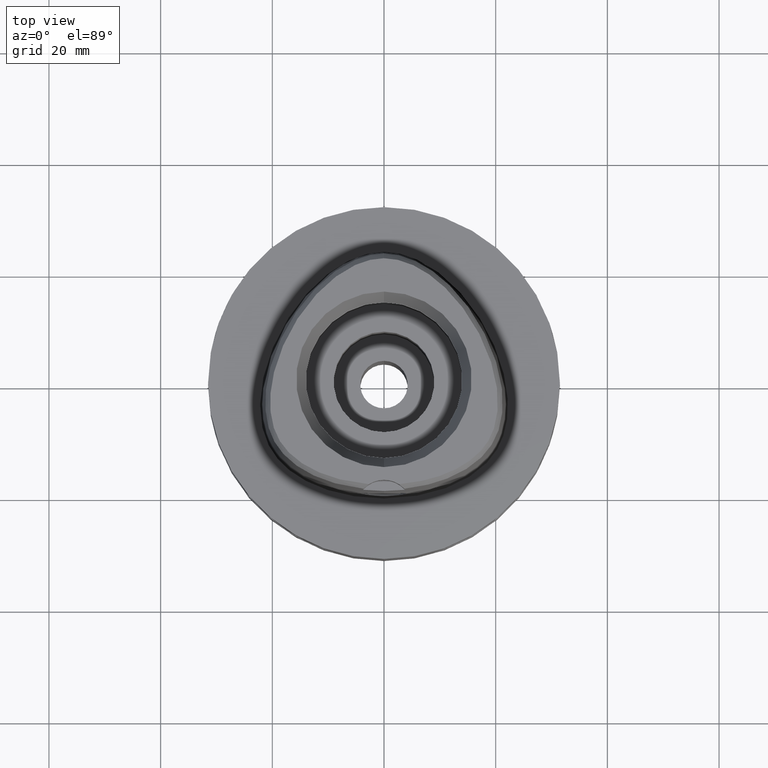
[diagram: clean part render]
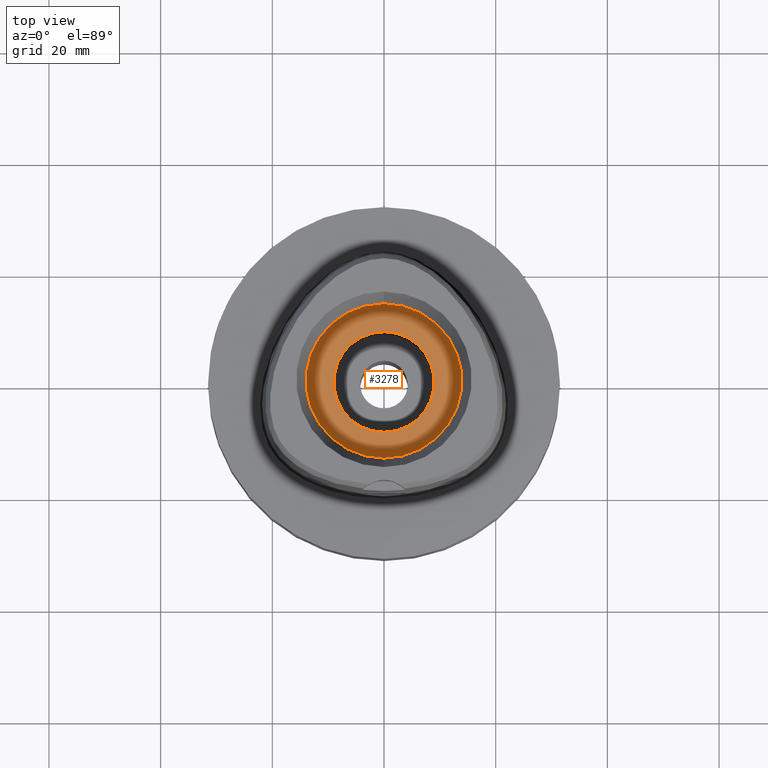
[diagram: same view with one face highlighted and labeled with its STEP entity id]
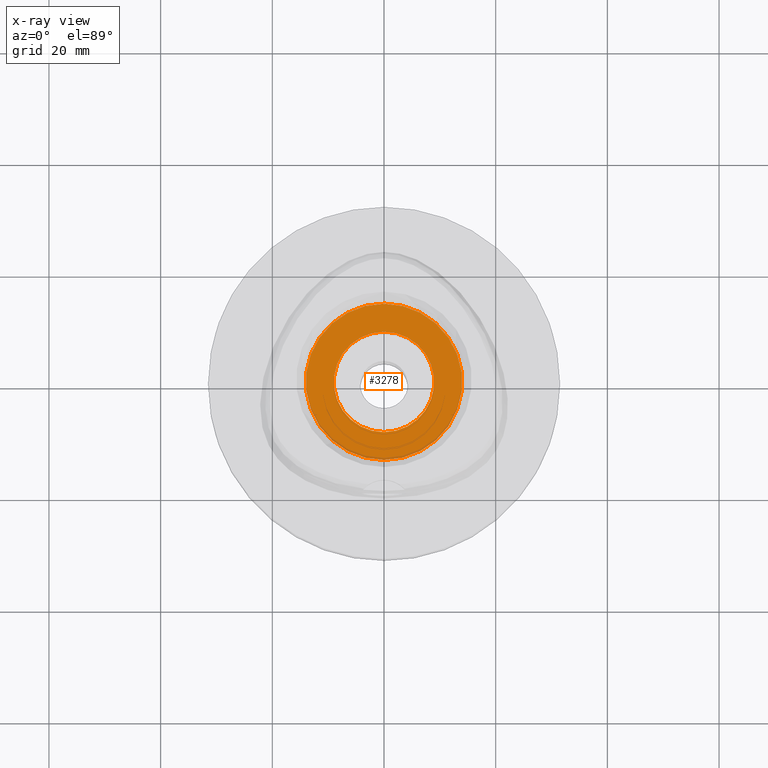
[diagram: x-ray of the same camera — body ghosted, the highlighted face saturated]
A machine part, top view. The second image highlights one B-rep face of the part: STEP entity #3278.
The next image is the same camera in x-ray: the body ghosted, the highlighted face saturated — about 3% of this face is hidden behind the body in this view.
In plain terms, the highlighted planar face has unit normal (0, 0, -1).
Its self-contained STEP definition (entity closure, byte-faithful):
#1069=CARTESIAN_POINT('',(0.E0,0.E0,1.1E1));
#1070=DIRECTION('',(0.E0,0.E0,-1.E0));
#1071=DIRECTION('',(0.E0,1.E0,0.E0));
#1072=AXIS2_PLACEMENT_3D('',#1069,#1070,#1071);
#1077=CARTESIAN_POINT('',(0.E0,0.E0,1.1E1));
#1078=DIRECTION('',(0.E0,0.E0,-1.E0));
#1079=DIRECTION('',(0.E0,-1.E0,0.E0));
#1080=AXIS2_PLACEMENT_3D('',#1077,#1078,#1079);
#1085=CARTESIAN_POINT('',(0.E0,0.E0,1.1E1));
#1086=DIRECTION('',(0.E0,0.E0,1.E0));
#1087=DIRECTION('',(0.E0,1.E0,0.E0));
#1088=AXIS2_PLACEMENT_3D('',#1085,#1086,#1087);
#1093=CARTESIAN_POINT('',(0.E0,0.E0,1.1E1));
#1094=DIRECTION('',(0.E0,0.E0,1.E0));
#1095=DIRECTION('',(0.E0,-1.E0,0.E0));
#1096=AXIS2_PLACEMENT_3D('',#1093,#1094,#1095);
#1920=CARTESIAN_POINT('',(0.E0,9.E0,1.1E1));
#1921=VERTEX_POINT('',#1920);
#1922=CARTESIAN_POINT('',(0.E0,-9.E0,1.1E1));
#1923=VERTEX_POINT('',#1922);
#1924=CARTESIAN_POINT('',(0.E0,1.4E1,1.1E1));
#1925=CARTESIAN_POINT('',(0.E0,-1.4E1,1.1E1));
#1926=VERTEX_POINT('',#1924);
#1927=VERTEX_POINT('',#1925);
#3263=CARTESIAN_POINT('',(0.E0,0.E0,1.1E1));
#3264=DIRECTION('',(0.E0,0.E0,-1.E0));
#3265=DIRECTION('',(0.E0,-1.E0,0.E0));
#3266=AXIS2_PLACEMENT_3D('',#3263,#3264,#3265);
#3267=PLANE('',#3266);
#3269=ORIENTED_EDGE('',*,*,#3268,.T.);
#3271=ORIENTED_EDGE('',*,*,#3270,.T.);
#3272=EDGE_LOOP('',(#3269,#3271));
#3273=FACE_OUTER_BOUND('',#3272,.F.);
#3274=ORIENTED_EDGE('',*,*,#3245,.T.);
#3275=ORIENTED_EDGE('',*,*,#3258,.T.);
#3276=EDGE_LOOP('',(#3274,#3275));
#3277=FACE_BOUND('',#3276,.F.);
#1073=CIRCLE('',#1072,1.4E1);
#1081=CIRCLE('',#1080,1.4E1);
#1089=CIRCLE('',#1088,9.E0);
#1097=CIRCLE('',#1096,9.E0);
#3245=EDGE_CURVE('',#1921,#1923,#1089,.T.);
#3258=EDGE_CURVE('',#1923,#1921,#1097,.T.);
#3268=EDGE_CURVE('',#1926,#1927,#1073,.T.);
#3270=EDGE_CURVE('',#1927,#1926,#1081,.T.);
#3278=ADVANCED_FACE('',(#3273,#3277),#3267,.F.);